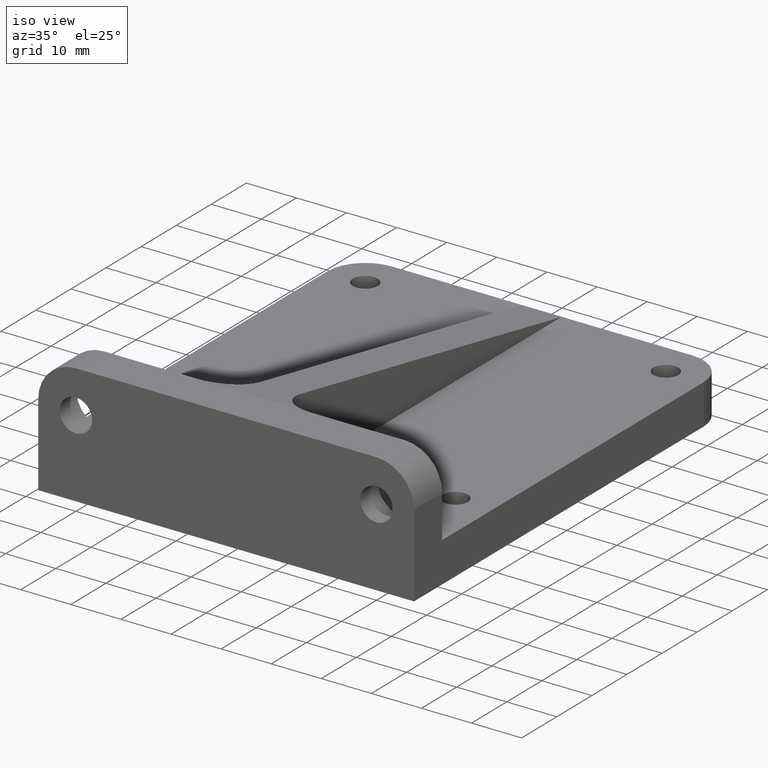
[diagram: clean part render]
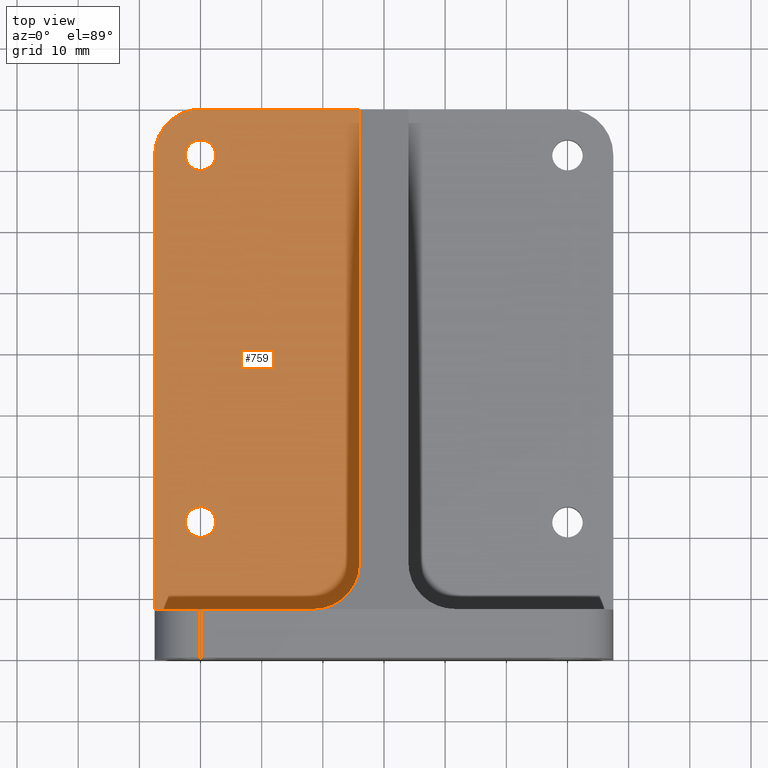
[diagram: tour spotlight — one face highlighted and labeled with its STEP entity id]
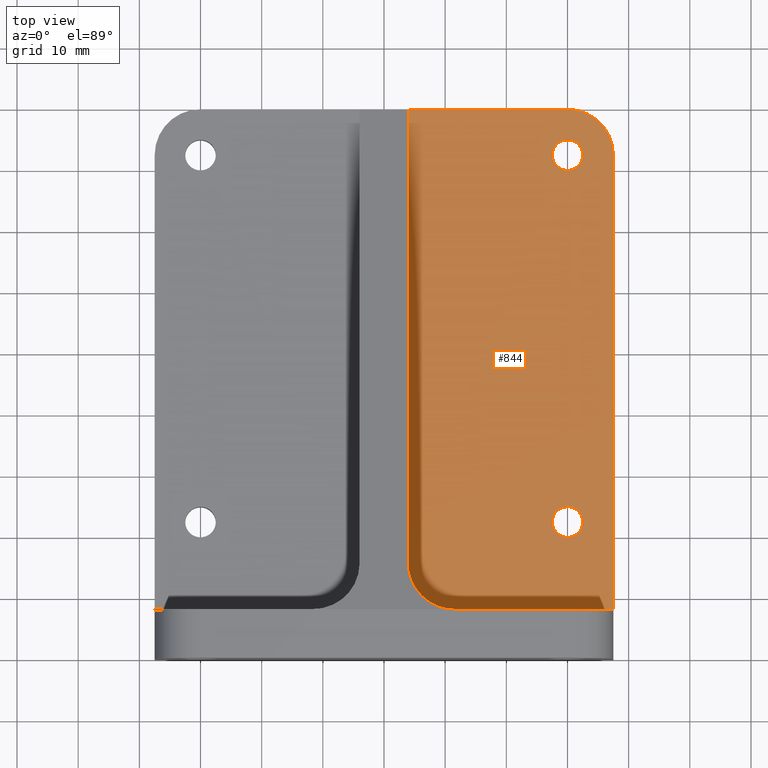
[diagram: tour spotlight — one face highlighted and labeled with its STEP entity id]
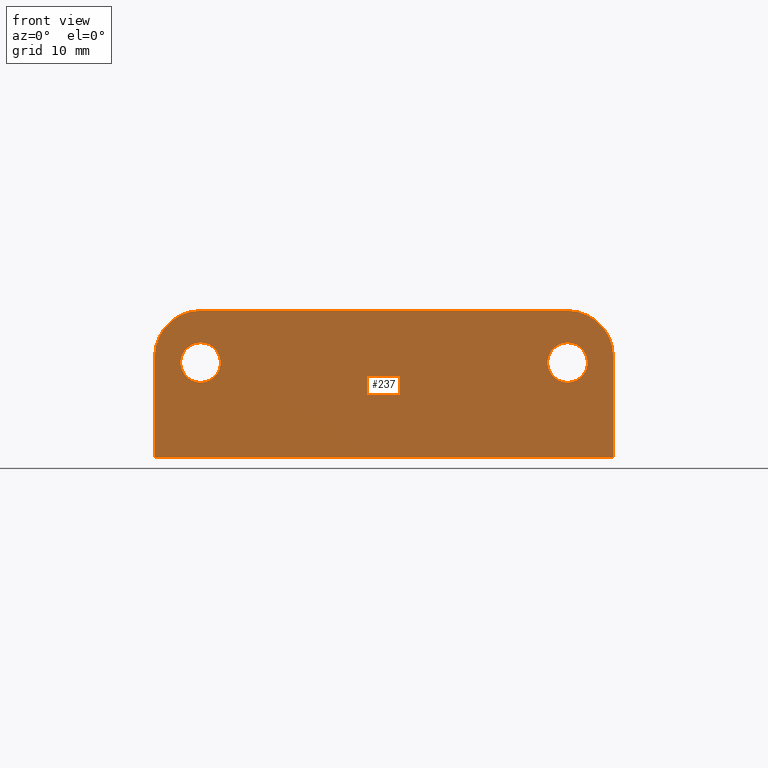
[diagram: tour spotlight — one face highlighted and labeled with its STEP entity id]
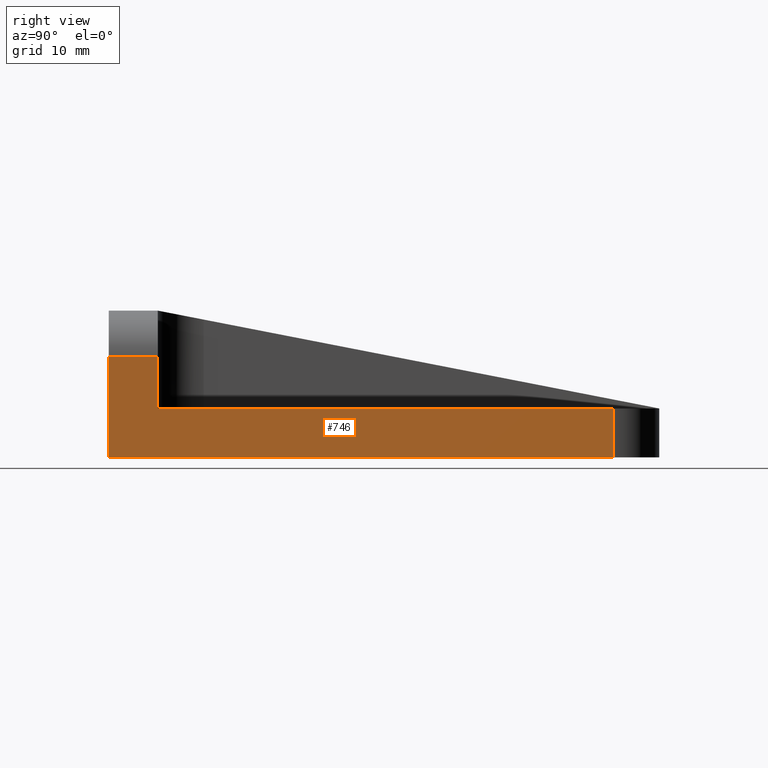
[diagram: tour spotlight — one face highlighted and labeled with its STEP entity id]
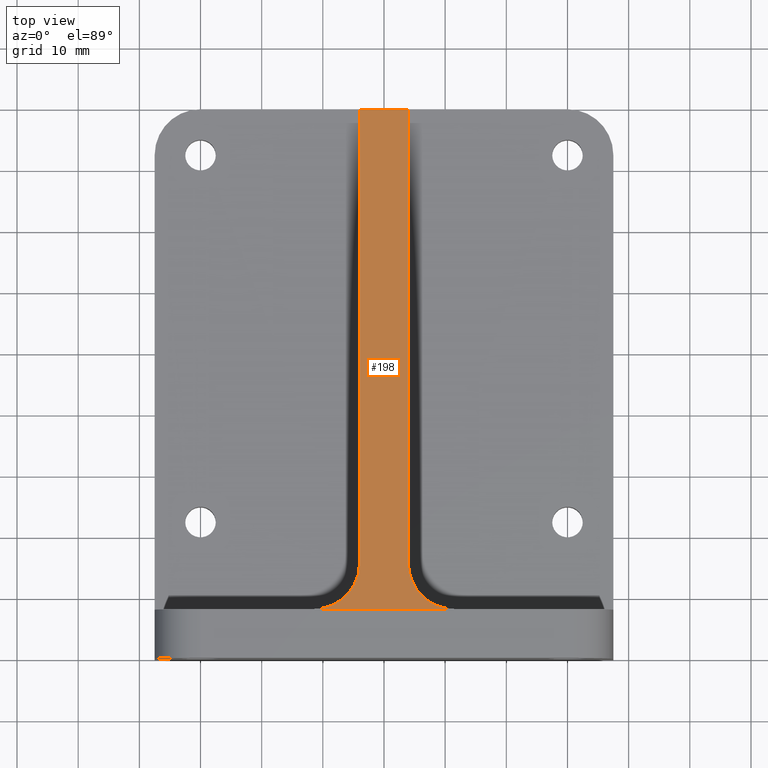
[diagram: tour spotlight — one face highlighted and labeled with its STEP entity id]
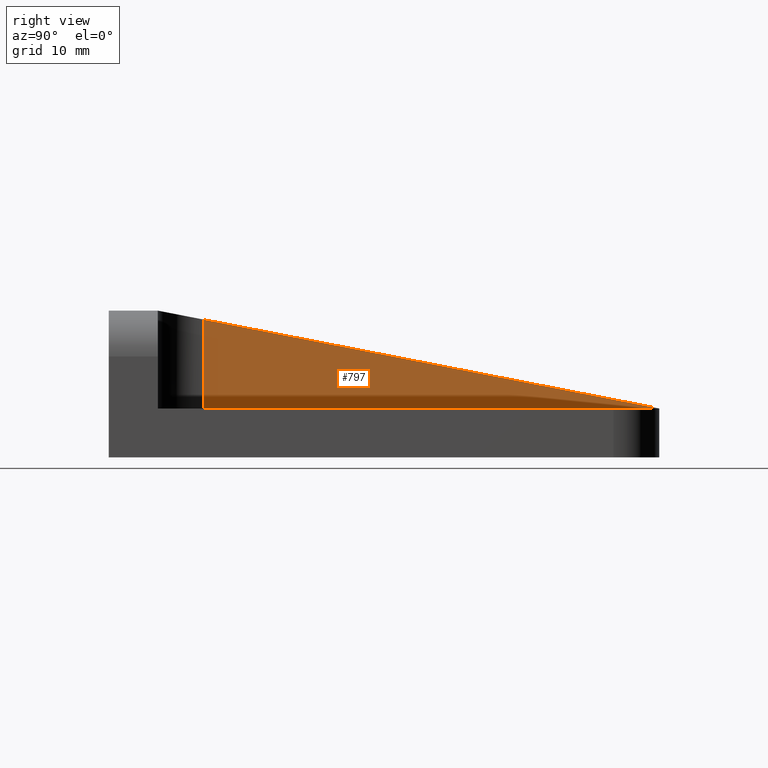
[diagram: tour spotlight — one face highlighted and labeled with its STEP entity id]
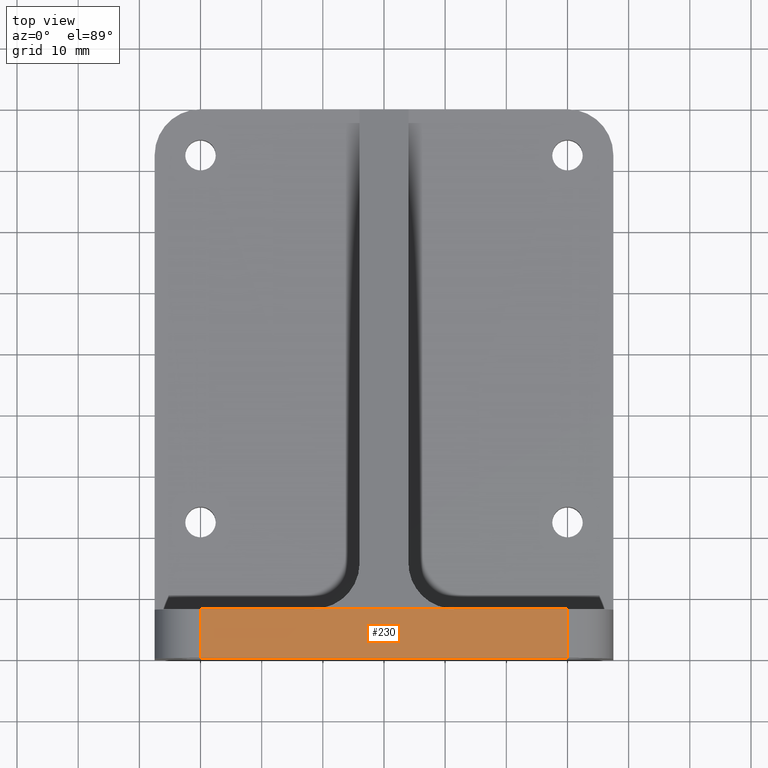
[diagram: tour spotlight — one face highlighted and labeled with its STEP entity id]
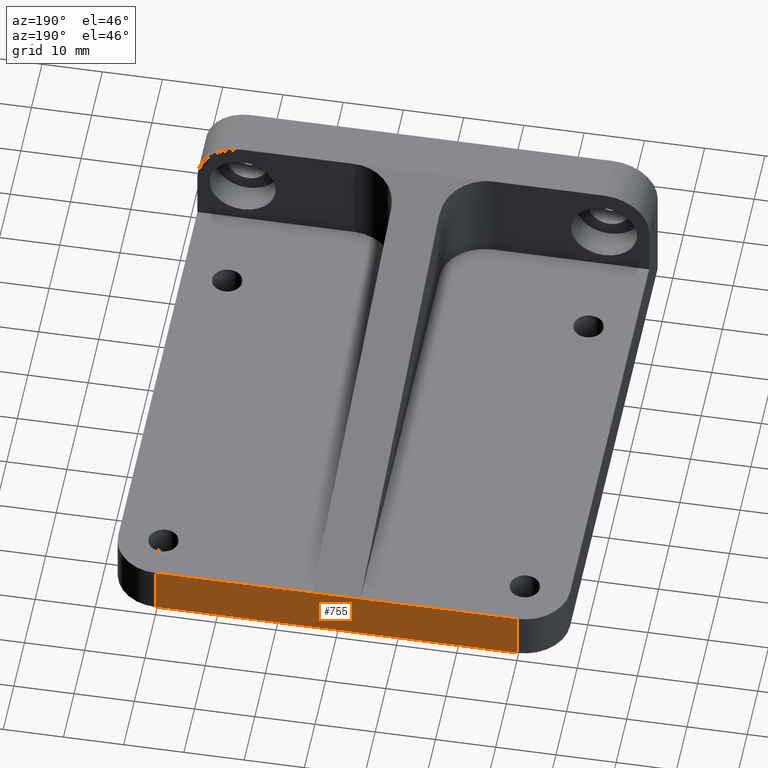
[diagram: tour spotlight — one face highlighted and labeled with its STEP entity id]
A machine part: a face-by-face anatomy tour. The part has 37 B-rep faces; the first image is the clean iso view, then the 8 largest visible faces are spotlighted one at a time (largest first), each with its STEP entity span.

Face 1 — top view, entity #759. In plain terms, the highlighted planar face has unit normal (0, 0, 1).
Definition (entity closure, byte-faithful):
#8 = AXIS2_PLACEMENT_3D ( 'NONE', #593, #983, #125 ) ;
#34 = DIRECTION ( 'NONE',  ( -0.0000000000000000000, -0.0000000000000000000, 1.000000000000000000 ) ) ;
#65 = CARTESIAN_POINT ( 'NONE',  ( -32.50000000000001421, 82.49999999999998579, 8.000000000000000000 ) ) ;
#95 = DIRECTION ( 'NONE',  ( -0.0000000000000000000, -0.0000000000000000000, 1.000000000000000000 ) ) ;
#104 = CARTESIAN_POINT ( 'NONE',  ( -3.999999999999991562, 15.49999999999999822, 8.000000000000007105 ) ) ;
#110 = DIRECTION ( 'NONE',  ( -0.0000000000000000000, -0.0000000000000000000, 1.000000000000000000 ) ) ;
#122 = CIRCLE ( 'NONE', #619, 2.499999999999998668 ) ;
#125 = DIRECTION ( 'NONE',  ( 1.000000000000000000, 0.0000000000000000000, 0.0000000000000000000 ) ) ;
#126 = DIRECTION ( 'NONE',  ( 1.000000000000000000, 0.0000000000000000000, 0.0000000000000000000 ) ) ;
#160 = VERTEX_POINT ( 'NONE', #65 ) ;
#193 = VERTEX_POINT ( 'NONE', #730 ) ;
#239 = CARTESIAN_POINT ( 'NONE',  ( -27.50000000000001421, 22.49999999999999645, 8.000000000000000000 ) ) ;
#253 = EDGE_CURVE ( 'NONE', #325, #542, #638, .T. ) ;
#259 = VERTEX_POINT ( 'NONE', #666 ) ;
#266 = DIRECTION ( 'NONE',  ( 0.0000000000000000000, 0.0000000000000000000, 1.000000000000000000 ) ) ;
#269 = ORIENTED_EDGE ( 'NONE', *, *, #1196, .T. ) ;
#273 = VERTEX_POINT ( 'NONE', #1234 ) ;
#291 = DIRECTION ( 'NONE',  ( -0.0000000000000000000, -0.0000000000000000000, 1.000000000000000000 ) ) ;
#300 = AXIS2_PLACEMENT_3D ( 'NONE', #539, #291, #453 ) ;
#305 = CARTESIAN_POINT ( 'NONE',  ( -37.50000000000000000, 90.00000000000000000, 8.000000000000007105 ) ) ;
#325 = VERTEX_POINT ( 'NONE', #239 ) ;
#350 = FACE_BOUND ( 'NONE', #670, .T. ) ;
#359 = CARTESIAN_POINT ( 'NONE',  ( -30.00000000000000711, 82.49999999999998579, 8.000000000000000000 ) ) ;
#361 = CIRCLE ( 'NONE', #965, 2.499999999999998668 ) ;
#370 = CARTESIAN_POINT ( 'NONE',  ( -30.00000000000001421, 82.49999999999998579, 8.000000000000000000 ) ) ;
#402 = AXIS2_PLACEMENT_3D ( 'NONE', #941, #645, #1033 ) ;
#404 = LINE ( 'NONE', #305, #906 ) ;
#405 = ORIENTED_EDGE ( 'NONE', *, *, #678, .F. ) ;
#453 = DIRECTION ( 'NONE',  ( 1.000000000000000000, 0.0000000000000000000, 0.0000000000000000000 ) ) ;
#473 = VECTOR ( 'NONE', #505, 1000.000000000000000 ) ;
#492 = CIRCLE ( 'NONE', #1143, 7.500000000000000000 ) ;
#505 = DIRECTION ( 'NONE',  ( 2.538619720941669448E-16, -1.000000000000000000, 0.0000000000000000000 ) ) ;
#511 = CIRCLE ( 'NONE', #1047, 2.499999999999998668 ) ;
#539 = CARTESIAN_POINT ( 'NONE',  ( -30.00000000000001421, 22.49999999999999645, 8.000000000000000000 ) ) ;
#542 = VERTEX_POINT ( 'NONE', #1129 ) ;
#543 = FACE_OUTER_BOUND ( 'NONE', #644, .T. ) ;
#553 = DIRECTION ( 'NONE',  ( 1.000000000000000000, 0.0000000000000000000, 0.0000000000000000000 ) ) ;
#572 = ORIENTED_EDGE ( 'NONE', *, *, #1069, .F. ) ;
#580 = DIRECTION ( 'NONE',  ( 1.000000000000000000, 0.0000000000000000000, 0.0000000000000000000 ) ) ;
#593 = CARTESIAN_POINT ( 'NONE',  ( -11.49999999999999112, 15.49999999999999645, 8.000000000000007105 ) ) ;
#595 = ORIENTED_EDGE ( 'NONE', *, *, #969, .T. ) ;
#613 = CARTESIAN_POINT ( 'NONE',  ( -27.50000000000001421, 82.49999999999998579, 8.000000000000000000 ) ) ;
#619 = AXIS2_PLACEMENT_3D ( 'NONE', #672, #95, #580 ) ;
#628 = EDGE_CURVE ( 'NONE', #542, #325, #122, .T. ) ;
#638 = CIRCLE ( 'NONE', #300, 2.499999999999998668 ) ;
#644 = EDGE_LOOP ( 'NONE', ( #1111, #269, #918, #405, #595, #959 ) ) ;
#645 = DIRECTION ( 'NONE',  ( 0.0000000000000000000, 0.0000000000000000000, 1.000000000000000000 ) ) ;
#666 = CARTESIAN_POINT ( 'NONE',  ( -11.49999999999998934, 7.999999999999996447, 8.000000000000007105 ) ) ;
#668 = EDGE_CURVE ( 'NONE', #193, #785, #404, .T. ) ;
#670 = EDGE_LOOP ( 'NONE', ( #922, #572 ) ) ;
#672 = CARTESIAN_POINT ( 'NONE',  ( -30.00000000000001421, 22.49999999999999645, 8.000000000000000000 ) ) ;
#678 = EDGE_CURVE ( 'NONE', #259, #1219, #1071, .T. ) ;
#682 = DIRECTION ( 'NONE',  ( -1.000000000000000000, 0.0000000000000000000, 0.0000000000000000000 ) ) ;
#714 = VERTEX_POINT ( 'NONE', #613 ) ;
#730 = CARTESIAN_POINT ( 'NONE',  ( -30.00000000000000711, 90.00000000000000000, 8.000000000000007105 ) ) ;
#734 = PLANE ( 'NONE',  #402 ) ;
#759 = ADVANCED_FACE ( 'NONE', ( #350, #1029, #543 ), #734, .T. ) ;
#785 = VERTEX_POINT ( 'NONE', #1037 ) ;
#798 = CARTESIAN_POINT ( 'NONE',  ( -37.50000000000000000, 7.999999999999996447, 8.000000000000007105 ) ) ;
#804 = ORIENTED_EDGE ( 'NONE', *, *, #628, .F. ) ;
#808 = CARTESIAN_POINT ( 'NONE',  ( -37.50000000000000000, 7.999999999999996447, 8.000000000000007105 ) ) ;
#820 = VERTEX_POINT ( 'NONE', #104 ) ;
#827 = EDGE_CURVE ( 'NONE', #714, #160, #511, .T. ) ;
#860 = EDGE_CURVE ( 'NONE', #785, #820, #1085, .T. ) ;
#864 = EDGE_CURVE ( 'NONE', #1219, #273, #1180, .T. ) ;
#890 = CARTESIAN_POINT ( 'NONE',  ( -3.999999999999989786, 7.999999999999996447, 8.000000000000007105 ) ) ;
#896 = DIRECTION ( 'NONE',  ( 1.000000000000000000, 0.0000000000000000000, 0.0000000000000000000 ) ) ;
#906 = VECTOR ( 'NONE', #1163, 1000.000000000000000 ) ;
#918 = ORIENTED_EDGE ( 'NONE', *, *, #864, .F. ) ;
#922 = ORIENTED_EDGE ( 'NONE', *, *, #827, .F. ) ;
#941 = CARTESIAN_POINT ( 'NONE',  ( 37.50000000000000000, 0.0000000000000000000, 8.000000000000000000 ) ) ;
#945 = VECTOR ( 'NONE', #682, 1000.000000000000000 ) ;
#959 = ORIENTED_EDGE ( 'NONE', *, *, #860, .F. ) ;
#965 = AXIS2_PLACEMENT_3D ( 'NONE', #1063, #34, #126 ) ;
#969 = EDGE_CURVE ( 'NONE', #259, #820, #1141, .T. ) ;
#983 = DIRECTION ( 'NONE',  ( 0.0000000000000000000, 0.0000000000000000000, 1.000000000000000000 ) ) ;
#991 = DIRECTION ( 'NONE',  ( 0.0000000000000000000, 1.000000000000000000, -0.0000000000000000000 ) ) ;
#1029 = FACE_BOUND ( 'NONE', #1091, .T. ) ;
#1033 = DIRECTION ( 'NONE',  ( 1.000000000000000000, 0.0000000000000000000, -0.0000000000000000000 ) ) ;
#1037 = CARTESIAN_POINT ( 'NONE',  ( -4.000000000000010658, 89.99999999999998579, 8.000000000000007105 ) ) ;
#1043 = ORIENTED_EDGE ( 'NONE', *, *, #253, .F. ) ;
#1047 = AXIS2_PLACEMENT_3D ( 'NONE', #370, #110, #553 ) ;
#1063 = CARTESIAN_POINT ( 'NONE',  ( -30.00000000000001421, 82.49999999999998579, 8.000000000000000000 ) ) ;
#1069 = EDGE_CURVE ( 'NONE', #160, #714, #361, .T. ) ;
#1071 = LINE ( 'NONE', #1187, #945 ) ;
#1085 = LINE ( 'NONE', #890, #473 ) ;
#1091 = EDGE_LOOP ( 'NONE', ( #1043, #804 ) ) ;
#1111 = ORIENTED_EDGE ( 'NONE', *, *, #668, .F. ) ;
#1129 = CARTESIAN_POINT ( 'NONE',  ( -32.50000000000001421, 22.49999999999999645, 8.000000000000000000 ) ) ;
#1141 = CIRCLE ( 'NONE', #8, 7.500000000000000000 ) ;
#1143 = AXIS2_PLACEMENT_3D ( 'NONE', #359, #266, #896 ) ;
#1163 = DIRECTION ( 'NONE',  ( 1.000000000000000000, -4.142623226213271784E-16, 0.0000000000000000000 ) ) ;
#1180 = LINE ( 'NONE', #808, #1231 ) ;
#1187 = CARTESIAN_POINT ( 'NONE',  ( -37.50000000000000000, 7.999999999999996447, 8.000000000000007105 ) ) ;
#1196 = EDGE_CURVE ( 'NONE', #193, #273, #492, .T. ) ;
#1219 = VERTEX_POINT ( 'NONE', #798 ) ;
#1231 = VECTOR ( 'NONE', #991, 1000.000000000000000 ) ;
#1234 = CARTESIAN_POINT ( 'NONE',  ( -37.50000000000000000, 82.49999999999998579, 8.000000000000007105 ) ) ;

Face 2 — top view, entity #844. In plain terms, the highlighted planar face has unit normal (0, 0, 1).
Definition (entity closure, byte-faithful):
#1 = DIRECTION ( 'NONE',  ( 0.0000000000000000000, 0.0000000000000000000, 1.000000000000000000 ) ) ;
#16 = CARTESIAN_POINT ( 'NONE',  ( 29.99999999999998579, 82.50000000000000000, 8.000000000000000000 ) ) ;
#17 = EDGE_CURVE ( 'NONE', #973, #92, #1109, .T. ) ;
#18 = CARTESIAN_POINT ( 'NONE',  ( 37.50000000000000000, 82.49999999999998579, 8.000000000000007105 ) ) ;
#20 = ORIENTED_EDGE ( 'NONE', *, *, #810, .T. ) ;
#24 = ORIENTED_EDGE ( 'NONE', *, *, #61, .T. ) ;
#35 = ORIENTED_EDGE ( 'NONE', *, *, #17, .T. ) ;
#40 = PLANE ( 'NONE',  #987 ) ;
#49 = AXIS2_PLACEMENT_3D ( 'NONE', #1084, #226, #691 ) ;
#61 = EDGE_CURVE ( 'NONE', #139, #1023, #570, .T. ) ;
#92 = VERTEX_POINT ( 'NONE', #136 ) ;
#105 = AXIS2_PLACEMENT_3D ( 'NONE', #618, #1006, #341 ) ;
#117 = CARTESIAN_POINT ( 'NONE',  ( 37.50000000000000000, 7.999999999999996447, 8.000000000000007105 ) ) ;
#123 = LINE ( 'NONE', #117, #831 ) ;
#131 = CARTESIAN_POINT ( 'NONE',  ( 27.49999999999998224, 82.50000000000000000, 8.000000000000000000 ) ) ;
#136 = CARTESIAN_POINT ( 'NONE',  ( 4.000000000000008882, 89.99999999999998579, 8.000000000000007105 ) ) ;
#139 = VERTEX_POINT ( 'NONE', #533 ) ;
#144 = VECTOR ( 'NONE', #937, 1000.000000000000000 ) ;
#149 = EDGE_LOOP ( 'NONE', ( #240, #665 ) ) ;
#175 = CIRCLE ( 'NONE', #1164, 7.500000000000000000 ) ;
#187 = DIRECTION ( 'NONE',  ( -0.0000000000000000000, -0.0000000000000000000, 1.000000000000000000 ) ) ;
#189 = CARTESIAN_POINT ( 'NONE',  ( 37.50000000000000000, 90.00000000000000000, 8.000000000000000000 ) ) ;
#207 = CARTESIAN_POINT ( 'NONE',  ( 27.50000000000002487, 22.50000000000000355, 8.000000000000000000 ) ) ;
#226 = DIRECTION ( 'NONE',  ( 0.0000000000000000000, 0.0000000000000000000, 1.000000000000000000 ) ) ;
#240 = ORIENTED_EDGE ( 'NONE', *, *, #1036, .F. ) ;
#284 = EDGE_CURVE ( 'NONE', #916, #1023, #460, .T. ) ;
#290 = CARTESIAN_POINT ( 'NONE',  ( 30.00000000000000000, 82.49999999999998579, 8.000000000000000000 ) ) ;
#295 = ORIENTED_EDGE ( 'NONE', *, *, #704, .F. ) ;
#303 = FACE_OUTER_BOUND ( 'NONE', #712, .T. ) ;
#314 = DIRECTION ( 'NONE',  ( -0.0000000000000000000, -1.000000000000000000, 0.0000000000000000000 ) ) ;
#341 = DIRECTION ( 'NONE',  ( 1.000000000000000000, 0.0000000000000000000, 0.0000000000000000000 ) ) ;
#354 = DIRECTION ( 'NONE',  ( 1.000000000000000000, 0.0000000000000000000, 0.0000000000000000000 ) ) ;
#372 = DIRECTION ( 'NONE',  ( 0.0000000000000000000, 1.000000000000000000, -0.0000000000000000000 ) ) ;
#373 = EDGE_CURVE ( 'NONE', #872, #1152, #984, .T. ) ;
#396 = DIRECTION ( 'NONE',  ( 1.000000000000000000, 0.0000000000000000000, 0.0000000000000000000 ) ) ;
#403 = CIRCLE ( 'NONE', #989, 2.500000000000002220 ) ;
#421 = CARTESIAN_POINT ( 'NONE',  ( 37.50000000000000000, 0.0000000000000000000, 8.000000000000000000 ) ) ;
#431 = EDGE_LOOP ( 'NONE', ( #911, #472 ) ) ;
#459 = AXIS2_PLACEMENT_3D ( 'NONE', #483, #882, #396 ) ;
#460 = LINE ( 'NONE', #857, #849 ) ;
#469 = DIRECTION ( 'NONE',  ( -0.0000000000000000000, -0.0000000000000000000, 1.000000000000000000 ) ) ;
#472 = ORIENTED_EDGE ( 'NONE', *, *, #892, .F. ) ;
#483 = CARTESIAN_POINT ( 'NONE',  ( 30.00000000000002842, 22.50000000000000355, 8.000000000000000000 ) ) ;
#490 = DIRECTION ( 'NONE',  ( 1.000000000000000000, 0.0000000000000000000, -0.0000000000000000000 ) ) ;
#507 = CARTESIAN_POINT ( 'NONE',  ( 37.50000000000000000, 7.999999999999996447, 8.000000000000000000 ) ) ;
#510 = VECTOR ( 'NONE', #372, 1000.000000000000000 ) ;
#530 = ORIENTED_EDGE ( 'NONE', *, *, #573, .F. ) ;
#533 = CARTESIAN_POINT ( 'NONE',  ( 4.000000000000008882, 15.49999999999999822, 8.000000000000007105 ) ) ;
#570 = CIRCLE ( 'NONE', #49, 7.500000000000000000 ) ;
#573 = EDGE_CURVE ( 'NONE', #139, #92, #757, .T. ) ;
#578 = FACE_BOUND ( 'NONE', #149, .T. ) ;
#582 = VERTEX_POINT ( 'NONE', #18 ) ;
#618 = CARTESIAN_POINT ( 'NONE',  ( 30.00000000000002842, 22.50000000000000355, 8.000000000000000000 ) ) ;
#637 = CARTESIAN_POINT ( 'NONE',  ( 29.99999999999998579, 82.50000000000000000, 8.000000000000000000 ) ) ;
#665 = ORIENTED_EDGE ( 'NONE', *, *, #373, .F. ) ;
#686 = CARTESIAN_POINT ( 'NONE',  ( 32.50000000000002842, 22.50000000000000355, 8.000000000000000000 ) ) ;
#691 = DIRECTION ( 'NONE',  ( 1.000000000000000000, 0.0000000000000000000, 0.0000000000000000000 ) ) ;
#704 = EDGE_CURVE ( 'NONE', #582, #916, #123, .T. ) ;
#712 = EDGE_LOOP ( 'NONE', ( #295, #20, #35, #530, #24, #821 ) ) ;
#719 = AXIS2_PLACEMENT_3D ( 'NONE', #637, #187, #354 ) ;
#757 = LINE ( 'NONE', #1242, #510 ) ;
#778 = CARTESIAN_POINT ( 'NONE',  ( 32.49999999999998579, 82.50000000000000000, 8.000000000000000000 ) ) ;
#810 = EDGE_CURVE ( 'NONE', #582, #973, #175, .T. ) ;
#815 = DIRECTION ( 'NONE',  ( 0.0000000000000000000, 0.0000000000000000000, 1.000000000000000000 ) ) ;
#821 = ORIENTED_EDGE ( 'NONE', *, *, #284, .F. ) ;
#831 = VECTOR ( 'NONE', #314, 1000.000000000000000 ) ;
#844 = ADVANCED_FACE ( 'NONE', ( #1067, #578, #303 ), #40, .T. ) ;
#849 = VECTOR ( 'NONE', #1240, 1000.000000000000000 ) ;
#855 = VERTEX_POINT ( 'NONE', #686 ) ;
#857 = CARTESIAN_POINT ( 'NONE',  ( 37.50000000000000000, 7.999999999999996447, 8.000000000000007105 ) ) ;
#867 = DIRECTION ( 'NONE',  ( 1.000000000000000000, 0.0000000000000000000, 0.0000000000000000000 ) ) ;
#872 = VERTEX_POINT ( 'NONE', #131 ) ;
#880 = CARTESIAN_POINT ( 'NONE',  ( 11.50000000000001066, 7.999999999999998224, 8.000000000000007105 ) ) ;
#882 = DIRECTION ( 'NONE',  ( -0.0000000000000000000, -0.0000000000000000000, 1.000000000000000000 ) ) ;
#892 = EDGE_CURVE ( 'NONE', #1026, #855, #964, .T. ) ;
#911 = ORIENTED_EDGE ( 'NONE', *, *, #1149, .F. ) ;
#916 = VERTEX_POINT ( 'NONE', #507 ) ;
#937 = DIRECTION ( 'NONE',  ( -1.000000000000000000, -0.0000000000000000000, -0.0000000000000000000 ) ) ;
#964 = CIRCLE ( 'NONE', #105, 2.500000000000002220 ) ;
#973 = VERTEX_POINT ( 'NONE', #1128 ) ;
#984 = CIRCLE ( 'NONE', #719, 2.500000000000002220 ) ;
#987 = AXIS2_PLACEMENT_3D ( 'NONE', #421, #815, #490 ) ;
#989 = AXIS2_PLACEMENT_3D ( 'NONE', #16, #469, #867 ) ;
#1006 = DIRECTION ( 'NONE',  ( -0.0000000000000000000, -0.0000000000000000000, 1.000000000000000000 ) ) ;
#1008 = CIRCLE ( 'NONE', #459, 2.500000000000002220 ) ;
#1023 = VERTEX_POINT ( 'NONE', #880 ) ;
#1026 = VERTEX_POINT ( 'NONE', #207 ) ;
#1036 = EDGE_CURVE ( 'NONE', #1152, #872, #403, .T. ) ;
#1055 = DIRECTION ( 'NONE',  ( 1.000000000000000000, 0.0000000000000000000, 0.0000000000000000000 ) ) ;
#1067 = FACE_BOUND ( 'NONE', #431, .T. ) ;
#1084 = CARTESIAN_POINT ( 'NONE',  ( 11.50000000000001066, 15.49999999999999822, 8.000000000000007105 ) ) ;
#1109 = LINE ( 'NONE', #189, #144 ) ;
#1128 = CARTESIAN_POINT ( 'NONE',  ( 30.00000000000000000, 90.00000000000000000, 8.000000000000000000 ) ) ;
#1149 = EDGE_CURVE ( 'NONE', #855, #1026, #1008, .T. ) ;
#1152 = VERTEX_POINT ( 'NONE', #778 ) ;
#1164 = AXIS2_PLACEMENT_3D ( 'NONE', #290, #1, #1055 ) ;
#1240 = DIRECTION ( 'NONE',  ( -1.000000000000000000, 5.178279032766589730E-17, 0.0000000000000000000 ) ) ;
#1242 = CARTESIAN_POINT ( 'NONE',  ( 4.000000000000008882, 7.999999999999998224, 8.000000000000007105 ) ) ;

Face 3 — front view, entity #237. In plain terms, the highlighted planar face has unit normal (-0, 1, 0).
Definition (entity closure, byte-faithful):
#6 = EDGE_CURVE ( 'NONE', #391, #1239, #981, .T. ) ;
#30 = CIRCLE ( 'NONE', #124, 3.249999999999999556 ) ;
#33 = VERTEX_POINT ( 'NONE', #316 ) ;
#43 = VERTEX_POINT ( 'NONE', #1160 ) ;
#44 = DIRECTION ( 'NONE',  ( 0.0000000000000000000, -1.224646799147352961E-16, 1.000000000000000000 ) ) ;
#52 = AXIS2_PLACEMENT_3D ( 'NONE', #1183, #696, #1082 ) ;
#99 = DIRECTION ( 'NONE',  ( 0.0000000000000000000, -1.224646799147352961E-16, 1.000000000000000000 ) ) ;
#109 = EDGE_LOOP ( 'NONE', ( #792, #495 ) ) ;
#124 = AXIS2_PLACEMENT_3D ( 'NONE', #588, #306, #978 ) ;
#133 = ORIENTED_EDGE ( 'NONE', *, *, #1155, .F. ) ;
#143 = EDGE_CURVE ( 'NONE', #1032, #1075, #931, .T. ) ;
#159 = ORIENTED_EDGE ( 'NONE', *, *, #463, .F. ) ;
#185 = PLANE ( 'NONE',  #961 ) ;
#195 = AXIS2_PLACEMENT_3D ( 'NONE', #1127, #436, #270 ) ;
#212 = CARTESIAN_POINT ( 'NONE',  ( 30.00000000000000000, -2.939152317953647894E-15, 24.00000000000000000 ) ) ;
#232 = DIRECTION ( 'NONE',  ( 0.0000000000000000000, -1.000000000000000000, -1.224646799147353207E-16 ) ) ;
#237 = ADVANCED_FACE ( 'NONE', ( #1222, #721, #1097 ), #185, .F. ) ;
#249 = CIRCLE ( 'NONE', #946, 7.500000000000000000 ) ;
#267 = AXIS2_PLACEMENT_3D ( 'NONE', #767, #232, #44 ) ;
#270 = DIRECTION ( 'NONE',  ( 0.0000000000000000000, -1.224646799147352961E-16, 1.000000000000000000 ) ) ;
#279 = DIRECTION ( 'NONE',  ( 0.0000000000000000000, -1.000000000000000000, -1.224646799147353207E-16 ) ) ;
#306 = DIRECTION ( 'NONE',  ( -0.0000000000000000000, 1.000000000000000000, 1.224646799147353207E-16 ) ) ;
#310 = EDGE_LOOP ( 'NONE', ( #159, #629, #826, #1184, #883, #133 ) ) ;
#316 = CARTESIAN_POINT ( 'NONE',  ( 37.50000000000000000, -2.020667218593133100E-15, 16.50000000000000000 ) ) ;
#336 = CARTESIAN_POINT ( 'NONE',  ( -37.50000000000000000, 0.0000000000000000000, 0.0000000000000000000 ) ) ;
#340 = ORIENTED_EDGE ( 'NONE', *, *, #6, .T. ) ;
#352 = CARTESIAN_POINT ( 'NONE',  ( 37.50000000000000000, 0.0000000000000000000, 0.0000000000000000000 ) ) ;
#364 = DIRECTION ( 'NONE',  ( 0.0000000000000000000, -1.224646799147352961E-16, 1.000000000000000000 ) ) ;
#368 = VERTEX_POINT ( 'NONE', #449 ) ;
#391 = VERTEX_POINT ( 'NONE', #1237 ) ;
#392 = VERTEX_POINT ( 'NONE', #1211 ) ;
#436 = DIRECTION ( 'NONE',  ( -0.0000000000000000000, 1.000000000000000000, 1.224646799147353207E-16 ) ) ;
#448 = CARTESIAN_POINT ( 'NONE',  ( 30.00000000000000355, -1.734723475976807094E-15, 15.49999999999999289 ) ) ;
#449 = CARTESIAN_POINT ( 'NONE',  ( -29.99999999999999645, -1.336713266253917468E-15, 12.25000000000000000 ) ) ;
#463 = EDGE_CURVE ( 'NONE', #33, #43, #958, .T. ) ;
#495 = ORIENTED_EDGE ( 'NONE', *, *, #1108, .T. ) ;
#503 = EDGE_LOOP ( 'NONE', ( #340, #1072 ) ) ;
#513 = CIRCLE ( 'NONE', #52, 3.249999999999999556 ) ;
#515 = VERTEX_POINT ( 'NONE', #881 ) ;
#546 = DIRECTION ( 'NONE',  ( -0.0000000000000000000, 1.000000000000000000, 1.224646799147353207E-16 ) ) ;
#556 = CARTESIAN_POINT ( 'NONE',  ( 37.50000000000000000, 0.0000000000000000000, 0.0000000000000000000 ) ) ;
#557 = CARTESIAN_POINT ( 'NONE',  ( 30.00000000000000355, -1.336713266253917468E-15, 12.24999999999999289 ) ) ;
#588 = CARTESIAN_POINT ( 'NONE',  ( 30.00000000000000355, -1.734723475976807094E-15, 15.49999999999999289 ) ) ;
#599 = CIRCLE ( 'NONE', #267, 7.500000000000000000 ) ;
#603 = CARTESIAN_POINT ( 'NONE',  ( -37.50000000000000000, 0.0000000000000000000, 0.0000000000000000000 ) ) ;
#624 = VECTOR ( 'NONE', #1012, 1000.000000000000000 ) ;
#629 = ORIENTED_EDGE ( 'NONE', *, *, #1031, .T. ) ;
#655 = CARTESIAN_POINT ( 'NONE',  ( -37.50000000000000000, -2.020667218593133100E-15, 16.50000000000000000 ) ) ;
#673 = VECTOR ( 'NONE', #728, 1000.000000000000000 ) ;
#696 = DIRECTION ( 'NONE',  ( -0.0000000000000000000, 1.000000000000000000, 1.224646799147353207E-16 ) ) ;
#721 = FACE_BOUND ( 'NONE', #503, .T. ) ;
#728 = DIRECTION ( 'NONE',  ( -0.0000000000000000000, 1.224646799147353207E-16, -1.000000000000000000 ) ) ;
#735 = DIRECTION ( 'NONE',  ( -0.0000000000000000000, 1.000000000000000000, 1.224646799147353207E-16 ) ) ;
#767 = CARTESIAN_POINT ( 'NONE',  ( -30.00000000000000711, -2.020667218593133100E-15, 16.50000000000000000 ) ) ;
#773 = LINE ( 'NONE', #1191, #1165 ) ;
#777 = EDGE_CURVE ( 'NONE', #392, #368, #851, .T. ) ;
#792 = ORIENTED_EDGE ( 'NONE', *, *, #777, .T. ) ;
#802 = DIRECTION ( 'NONE',  ( -1.000000000000000000, -0.0000000000000000000, -0.0000000000000000000 ) ) ;
#817 = VERTEX_POINT ( 'NONE', #212 ) ;
#825 = LINE ( 'NONE', #1198, #624 ) ;
#826 = ORIENTED_EDGE ( 'NONE', *, *, #1113, .T. ) ;
#851 = CIRCLE ( 'NONE', #195, 3.249999999999999556 ) ;
#881 = CARTESIAN_POINT ( 'NONE',  ( -30.00000000000000711, -2.939152317953647894E-15, 24.00000000000000000 ) ) ;
#883 = ORIENTED_EDGE ( 'NONE', *, *, #143, .T. ) ;
#909 = DIRECTION ( 'NONE',  ( 0.0000000000000000000, -1.224646799147353207E-16, 1.000000000000000000 ) ) ;
#923 = AXIS2_PLACEMENT_3D ( 'NONE', #448, #546, #364 ) ;
#931 = LINE ( 'NONE', #336, #673 ) ;
#946 = AXIS2_PLACEMENT_3D ( 'NONE', #1136, #279, #99 ) ;
#952 = DIRECTION ( 'NONE',  ( -0.0000000000000000000, 1.224646799147353207E-16, -1.000000000000000000 ) ) ;
#958 = LINE ( 'NONE', #556, #1120 ) ;
#961 = AXIS2_PLACEMENT_3D ( 'NONE', #352, #735, #909 ) ;
#978 = DIRECTION ( 'NONE',  ( 0.0000000000000000000, -1.224646799147352961E-16, 1.000000000000000000 ) ) ;
#981 = CIRCLE ( 'NONE', #923, 3.249999999999999556 ) ;
#1012 = DIRECTION ( 'NONE',  ( -1.000000000000000000, -0.0000000000000000000, -0.0000000000000000000 ) ) ;
#1031 = EDGE_CURVE ( 'NONE', #33, #817, #249, .T. ) ;
#1032 = VERTEX_POINT ( 'NONE', #655 ) ;
#1064 = EDGE_CURVE ( 'NONE', #515, #1032, #599, .T. ) ;
#1072 = ORIENTED_EDGE ( 'NONE', *, *, #1102, .T. ) ;
#1075 = VERTEX_POINT ( 'NONE', #603 ) ;
#1082 = DIRECTION ( 'NONE',  ( 0.0000000000000000000, -1.224646799147352961E-16, 1.000000000000000000 ) ) ;
#1097 = FACE_OUTER_BOUND ( 'NONE', #310, .T. ) ;
#1102 = EDGE_CURVE ( 'NONE', #1239, #391, #30, .T. ) ;
#1108 = EDGE_CURVE ( 'NONE', #368, #392, #513, .T. ) ;
#1113 = EDGE_CURVE ( 'NONE', #817, #515, #773, .T. ) ;
#1120 = VECTOR ( 'NONE', #952, 1000.000000000000000 ) ;
#1127 = CARTESIAN_POINT ( 'NONE',  ( -29.99999999999999645, -1.734723475976807094E-15, 15.50000000000000000 ) ) ;
#1136 = CARTESIAN_POINT ( 'NONE',  ( 30.00000000000000000, -2.020667218593133100E-15, 16.50000000000000000 ) ) ;
#1155 = EDGE_CURVE ( 'NONE', #43, #1075, #825, .T. ) ;
#1160 = CARTESIAN_POINT ( 'NONE',  ( 37.50000000000000000, 0.0000000000000000000, 0.0000000000000000000 ) ) ;
#1165 = VECTOR ( 'NONE', #802, 1000.000000000000000 ) ;
#1183 = CARTESIAN_POINT ( 'NONE',  ( -29.99999999999999645, -1.734723475976807094E-15, 15.50000000000000000 ) ) ;
#1184 = ORIENTED_EDGE ( 'NONE', *, *, #1064, .T. ) ;
#1191 = CARTESIAN_POINT ( 'NONE',  ( 37.50000000000000000, -2.939152317953647894E-15, 24.00000000000000000 ) ) ;
#1198 = CARTESIAN_POINT ( 'NONE',  ( 37.50000000000000000, 0.0000000000000000000, 0.0000000000000000000 ) ) ;
#1211 = CARTESIAN_POINT ( 'NONE',  ( -29.99999999999999645, -2.132733685699696720E-15, 18.75000000000000000 ) ) ;
#1222 = FACE_BOUND ( 'NONE', #109, .T. ) ;
#1237 = CARTESIAN_POINT ( 'NONE',  ( 30.00000000000000355, -2.132733685699696720E-15, 18.74999999999999289 ) ) ;
#1239 = VERTEX_POINT ( 'NONE', #557 ) ;

Face 4 — right view, entity #746. In plain terms, the highlighted planar face has unit normal (-1, 0, 0).
Definition (entity closure, byte-faithful):
#18 = CARTESIAN_POINT ( 'NONE',  ( 37.50000000000000000, 82.49999999999998579, 8.000000000000007105 ) ) ;
#33 = VERTEX_POINT ( 'NONE', #316 ) ;
#43 = VERTEX_POINT ( 'NONE', #1160 ) ;
#85 = VERTEX_POINT ( 'NONE', #498 ) ;
#107 = LINE ( 'NONE', #657, #194 ) ;
#114 = DIRECTION ( 'NONE',  ( 0.0000000000000000000, -1.000000000000000000, 0.0000000000000000000 ) ) ;
#117 = CARTESIAN_POINT ( 'NONE',  ( 37.50000000000000000, 7.999999999999996447, 8.000000000000007105 ) ) ;
#123 = LINE ( 'NONE', #117, #831 ) ;
#141 = LINE ( 'NONE', #1156, #150 ) ;
#150 = VECTOR ( 'NONE', #114, 1000.000000000000000 ) ;
#177 = CARTESIAN_POINT ( 'NONE',  ( 37.50000000000000000, 82.49999999999998579, 0.0000000000000000000 ) ) ;
#180 = CARTESIAN_POINT ( 'NONE',  ( 37.50000000000000000, 82.49999999999995737, 0.0000000000000000000 ) ) ;
#182 = EDGE_CURVE ( 'NONE', #1202, #582, #622, .T. ) ;
#194 = VECTOR ( 'NONE', #1150, 1000.000000000000000 ) ;
#196 = CARTESIAN_POINT ( 'NONE',  ( 37.50000000000000000, 0.0000000000000000000, 0.0000000000000000000 ) ) ;
#213 = AXIS2_PLACEMENT_3D ( 'NONE', #832, #633, #347 ) ;
#223 = ORIENTED_EDGE ( 'NONE', *, *, #257, .T. ) ;
#257 = EDGE_CURVE ( 'NONE', #43, #1202, #560, .T. ) ;
#314 = DIRECTION ( 'NONE',  ( -0.0000000000000000000, -1.000000000000000000, 0.0000000000000000000 ) ) ;
#316 = CARTESIAN_POINT ( 'NONE',  ( 37.50000000000000000, -2.020667218593133100E-15, 16.50000000000000000 ) ) ;
#347 = DIRECTION ( 'NONE',  ( 0.0000000000000000000, 0.0000000000000000000, 1.000000000000000000 ) ) ;
#426 = ORIENTED_EDGE ( 'NONE', *, *, #182, .T. ) ;
#443 = PLANE ( 'NONE',  #213 ) ;
#463 = EDGE_CURVE ( 'NONE', #33, #43, #958, .T. ) ;
#486 = VECTOR ( 'NONE', #1038, 1000.000000000000000 ) ;
#498 = CARTESIAN_POINT ( 'NONE',  ( 37.50000000000000000, 7.999999999999996447, 16.50000000000000000 ) ) ;
#507 = CARTESIAN_POINT ( 'NONE',  ( 37.50000000000000000, 7.999999999999996447, 8.000000000000000000 ) ) ;
#512 = ORIENTED_EDGE ( 'NONE', *, *, #1132, .T. ) ;
#544 = EDGE_CURVE ( 'NONE', #916, #85, #107, .T. ) ;
#556 = CARTESIAN_POINT ( 'NONE',  ( 37.50000000000000000, 0.0000000000000000000, 0.0000000000000000000 ) ) ;
#560 = LINE ( 'NONE', #196, #486 ) ;
#582 = VERTEX_POINT ( 'NONE', #18 ) ;
#622 = LINE ( 'NONE', #177, #884 ) ;
#633 = DIRECTION ( 'NONE',  ( -1.000000000000000000, 0.0000000000000000000, 0.0000000000000000000 ) ) ;
#657 = CARTESIAN_POINT ( 'NONE',  ( 37.50000000000000000, 7.999999999999996447, -88.57906073107798761 ) ) ;
#704 = EDGE_CURVE ( 'NONE', #582, #916, #123, .T. ) ;
#742 = FACE_OUTER_BOUND ( 'NONE', #1238, .T. ) ;
#746 = ADVANCED_FACE ( 'NONE', ( #742 ), #443, .F. ) ;
#749 = ORIENTED_EDGE ( 'NONE', *, *, #463, .T. ) ;
#831 = VECTOR ( 'NONE', #314, 1000.000000000000000 ) ;
#832 = CARTESIAN_POINT ( 'NONE',  ( 37.50000000000000000, 0.0000000000000000000, 0.0000000000000000000 ) ) ;
#884 = VECTOR ( 'NONE', #1217, 1000.000000000000000 ) ;
#916 = VERTEX_POINT ( 'NONE', #507 ) ;
#952 = DIRECTION ( 'NONE',  ( -0.0000000000000000000, 1.224646799147353207E-16, -1.000000000000000000 ) ) ;
#958 = LINE ( 'NONE', #556, #1120 ) ;
#1010 = ORIENTED_EDGE ( 'NONE', *, *, #704, .T. ) ;
#1038 = DIRECTION ( 'NONE',  ( 0.0000000000000000000, 1.000000000000000000, 0.0000000000000000000 ) ) ;
#1120 = VECTOR ( 'NONE', #952, 1000.000000000000000 ) ;
#1132 = EDGE_CURVE ( 'NONE', #85, #33, #141, .T. ) ;
#1133 = ORIENTED_EDGE ( 'NONE', *, *, #544, .T. ) ;
#1150 = DIRECTION ( 'NONE',  ( -0.0000000000000000000, -0.0000000000000000000, 1.000000000000000000 ) ) ;
#1156 = CARTESIAN_POINT ( 'NONE',  ( 37.50000000000000000, 0.0000000000000000000, 16.50000000000000000 ) ) ;
#1160 = CARTESIAN_POINT ( 'NONE',  ( 37.50000000000000000, 0.0000000000000000000, 0.0000000000000000000 ) ) ;
#1202 = VERTEX_POINT ( 'NONE', #180 ) ;
#1217 = DIRECTION ( 'NONE',  ( 0.0000000000000000000, 0.0000000000000000000, 1.000000000000000000 ) ) ;
#1238 = EDGE_LOOP ( 'NONE', ( #1133, #512, #749, #223, #426, #1010 ) ) ;

Face 5 — top view, entity #198. In plain terms, the highlighted planar face has unit normal (0, -0.1915, -0.9815).
Definition (entity closure, byte-faithful):
#3 = ORIENTED_EDGE ( 'NONE', *, *, #268, .T. ) ;
#60 = PLANE ( 'NONE',  #121 ) ;
#71 = VERTEX_POINT ( 'NONE', #782 ) ;
#76 = CARTESIAN_POINT ( 'NONE',  ( 7.106601717798236351, 7.999999999999996447, 24.00000000000000711 ) ) ;
#89 = VECTOR ( 'NONE', #910, 1000.000000000000000 ) ;
#92 = VERTEX_POINT ( 'NONE', #136 ) ;
#93 = DIRECTION ( 'NONE',  ( 2.491631372835153837E-16, -0.9814905920256988825, 0.1915103594196485570 ) ) ;
#101 = EDGE_CURVE ( 'NONE', #1193, #92, #521, .T. ) ;
#102 = EDGE_LOOP ( 'NONE', ( #412, #142, #3, #1135, #604, #1068 ) ) ;
#103 = VECTOR ( 'NONE', #93, 1000.000000000000227 ) ;
#121 = AXIS2_PLACEMENT_3D ( 'NONE', #1009, #845, #1030 ) ;
#136 = CARTESIAN_POINT ( 'NONE',  ( 4.000000000000008882, 89.99999999999998579, 8.000000000000007105 ) ) ;
#142 = ORIENTED_EDGE ( 'NONE', *, *, #276, .T. ) ;
#148 = VECTOR ( 'NONE', #1232, 1000.000000000000000 ) ;
#184 = LINE ( 'NONE', #936, #148 ) ;
#198 = ADVANCED_FACE ( 'NONE', ( #634 ), #60, .F. ) ;
#247 = CARTESIAN_POINT ( 'NONE',  ( 37.50000000000000000, 90.00000000000000000, 8.000000000000000000 ) ) ;
#268 = EDGE_CURVE ( 'NONE', #675, #784, #856, .T. ) ;
#271 = CARTESIAN_POINT ( 'NONE',  ( -4.000000000000004441, 11.10660171779819727, 23.39383381116133265 ) ) ;
#276 = EDGE_CURVE ( 'NONE', #785, #675, #751, .T. ) ;
#285 = CARTESIAN_POINT ( 'NONE',  ( -4.000000000000010658, 89.99999999999998579, 8.000000000000001776 ) ) ;
#320 = CARTESIAN_POINT ( 'NONE',  ( -3.999999999999991562, 15.49999999999997158, 22.53658536585366079 ) ) ;
#363 = CARTESIAN_POINT ( 'NONE',  ( -11.49999999999998934, 7.999999999999996447, 24.00000000000000000 ) ) ;
#412 = ORIENTED_EDGE ( 'NONE', *, *, #1157, .T. ) ;
#521 = LINE ( 'NONE', #1015, #741 ) ;
#528 = CARTESIAN_POINT ( 'NONE',  ( 11.50000000000001066, 7.999999999999996447, 24.00000000000000000 ) ) ;
#567 = CARTESIAN_POINT ( 'NONE',  ( -7.106601717798213258, 7.999999999999994671, 24.00000000000000711 ) ) ;
#604 = ORIENTED_EDGE ( 'NONE', *, *, #993, .T. ) ;
#615 = LINE ( 'NONE', #247, #89 ) ;
#634 = FACE_OUTER_BOUND ( 'NONE', #102, .T. ) ;
#649 = CARTESIAN_POINT ( 'NONE',  ( -11.49999999999998934, 7.999999999999996447, 24.00000000000000000 ) ) ;
#675 = VERTEX_POINT ( 'NONE', #320 ) ;
#740 = CARTESIAN_POINT ( 'NONE',  ( 4.000000000000010658, 15.49999999999997158, 22.53658536585366434 ) ) ;
#741 = VECTOR ( 'NONE', #1205, 1000.000000000000227 ) ;
#751 = LINE ( 'NONE', #285, #103 ) ;
#765 = EDGE_CURVE ( 'NONE', #71, #784, #184, .T. ) ;
#782 = CARTESIAN_POINT ( 'NONE',  ( 11.50000000000001066, 7.999999999999996447, 24.00000000000000000 ) ) ;
#784 = VERTEX_POINT ( 'NONE', #649 ) ;
#785 = VERTEX_POINT ( 'NONE', #1037 ) ;
#845 = DIRECTION ( 'NONE',  ( 0.0000000000000000000, -0.1915103594196485848, -0.9814905920256989935 ) ) ;
#856 =( BOUNDED_CURVE ( )  B_SPLINE_CURVE ( 3, ( #960, #271, #567, #363 ),
 .UNSPECIFIED., .F., .T. ) 
 B_SPLINE_CURVE_WITH_KNOTS ( ( 4, 4 ),
 ( 1.570796326794899667, 3.141592653589793116 ),
 .UNSPECIFIED. ) 
 CURVE ( )  GEOMETRIC_REPRESENTATION_ITEM ( )  RATIONAL_B_SPLINE_CURVE ( ( 1.000000000000000000, 0.8047378541243658256, 0.8047378541243658256, 1.000000000000000000 ) ) 
 REPRESENTATION_ITEM ( '' )  );
#910 = DIRECTION ( 'NONE',  ( -1.000000000000000000, -0.0000000000000000000, -0.0000000000000000000 ) ) ;
#936 = CARTESIAN_POINT ( 'NONE',  ( 37.50000000000000000, 7.999999999999996447, 24.00000000000000000 ) ) ;
#960 = CARTESIAN_POINT ( 'NONE',  ( -3.999999999999991562, 15.49999999999997158, 22.53658536585366079 ) ) ;
#977 =( BOUNDED_CURVE ( )  B_SPLINE_CURVE ( 3, ( #528, #76, #1223, #1115 ),
 .UNSPECIFIED., .F., .F. ) 
 B_SPLINE_CURVE_WITH_KNOTS ( ( 4, 4 ),
 ( 3.141592653589793116, 4.712388980384686121 ),
 .UNSPECIFIED. ) 
 CURVE ( )  GEOMETRIC_REPRESENTATION_ITEM ( )  RATIONAL_B_SPLINE_CURVE ( ( 1.000000000000000000, 0.8047378541243658256, 0.8047378541243658256, 1.000000000000000000 ) ) 
 REPRESENTATION_ITEM ( '' )  );
#993 = EDGE_CURVE ( 'NONE', #71, #1193, #977, .T. ) ;
#1009 = CARTESIAN_POINT ( 'NONE',  ( 37.50000000000000000, 90.00000000000000000, 8.000000000000000000 ) ) ;
#1015 = CARTESIAN_POINT ( 'NONE',  ( 4.000000000000010658, 90.00000000000000000, 8.000000000000000000 ) ) ;
#1030 = DIRECTION ( 'NONE',  ( 0.0000000000000000000, 0.9814905920256988825, -0.1915103594196485570 ) ) ;
#1037 = CARTESIAN_POINT ( 'NONE',  ( -4.000000000000010658, 89.99999999999998579, 8.000000000000007105 ) ) ;
#1068 = ORIENTED_EDGE ( 'NONE', *, *, #101, .T. ) ;
#1115 = CARTESIAN_POINT ( 'NONE',  ( 4.000000000000010658, 15.49999999999997158, 22.53658536585366434 ) ) ;
#1135 = ORIENTED_EDGE ( 'NONE', *, *, #765, .F. ) ;
#1157 = EDGE_CURVE ( 'NONE', #92, #785, #615, .T. ) ;
#1193 = VERTEX_POINT ( 'NONE', #740 ) ;
#1205 = DIRECTION ( 'NONE',  ( 0.0000000000000000000, 0.9814905920256988825, -0.1915103594196485570 ) ) ;
#1223 = CARTESIAN_POINT ( 'NONE',  ( 4.000000000000026645, 11.10660171779819727, 23.39383381116133265 ) ) ;
#1232 = DIRECTION ( 'NONE',  ( -1.000000000000000000, -0.0000000000000000000, -0.0000000000000000000 ) ) ;

Face 6 — right view, entity #797. In plain terms, the highlighted planar face has unit normal (-1, 0, 0).
Definition (entity closure, byte-faithful):
#92 = VERTEX_POINT ( 'NONE', #136 ) ;
#101 = EDGE_CURVE ( 'NONE', #1193, #92, #521, .T. ) ;
#136 = CARTESIAN_POINT ( 'NONE',  ( 4.000000000000008882, 89.99999999999998579, 8.000000000000007105 ) ) ;
#139 = VERTEX_POINT ( 'NONE', #533 ) ;
#277 = DIRECTION ( 'NONE',  ( -1.000000000000000000, 0.0000000000000000000, 0.0000000000000000000 ) ) ;
#372 = DIRECTION ( 'NONE',  ( 0.0000000000000000000, 1.000000000000000000, -0.0000000000000000000 ) ) ;
#374 = ORIENTED_EDGE ( 'NONE', *, *, #524, .T. ) ;
#424 = AXIS2_PLACEMENT_3D ( 'NONE', #756, #277, #970 ) ;
#479 = ORIENTED_EDGE ( 'NONE', *, *, #573, .T. ) ;
#489 = VECTOR ( 'NONE', #874, 1000.000000000000000 ) ;
#510 = VECTOR ( 'NONE', #372, 1000.000000000000000 ) ;
#521 = LINE ( 'NONE', #1015, #741 ) ;
#524 = EDGE_CURVE ( 'NONE', #1193, #139, #662, .T. ) ;
#533 = CARTESIAN_POINT ( 'NONE',  ( 4.000000000000008882, 15.49999999999999822, 8.000000000000007105 ) ) ;
#559 = PLANE ( 'NONE',  #424 ) ;
#573 = EDGE_CURVE ( 'NONE', #139, #92, #757, .T. ) ;
#616 = EDGE_LOOP ( 'NONE', ( #949, #374, #479 ) ) ;
#662 = LINE ( 'NONE', #963, #489 ) ;
#671 = FACE_OUTER_BOUND ( 'NONE', #616, .T. ) ;
#740 = CARTESIAN_POINT ( 'NONE',  ( 4.000000000000010658, 15.49999999999997158, 22.53658536585366434 ) ) ;
#741 = VECTOR ( 'NONE', #1205, 1000.000000000000227 ) ;
#756 = CARTESIAN_POINT ( 'NONE',  ( 4.000000000000008882, 7.999999999999998224, -88.57906073107798761 ) ) ;
#757 = LINE ( 'NONE', #1242, #510 ) ;
#797 = ADVANCED_FACE ( 'NONE', ( #671 ), #559, .F. ) ;
#874 = DIRECTION ( 'NONE',  ( -0.0000000000000000000, 0.0000000000000000000, -1.000000000000000000 ) ) ;
#949 = ORIENTED_EDGE ( 'NONE', *, *, #101, .F. ) ;
#963 = CARTESIAN_POINT ( 'NONE',  ( 4.000000000000008882, 15.49999999999999822, 8.000000000000007105 ) ) ;
#970 = DIRECTION ( 'NONE',  ( 0.0000000000000000000, 0.0000000000000000000, 1.000000000000000000 ) ) ;
#1015 = CARTESIAN_POINT ( 'NONE',  ( 4.000000000000010658, 90.00000000000000000, 8.000000000000000000 ) ) ;
#1193 = VERTEX_POINT ( 'NONE', #740 ) ;
#1205 = DIRECTION ( 'NONE',  ( 0.0000000000000000000, 0.9814905920256988825, -0.1915103594196485570 ) ) ;
#1242 = CARTESIAN_POINT ( 'NONE',  ( 4.000000000000008882, 7.999999999999998224, 8.000000000000007105 ) ) ;

Face 7 — top view, entity #230. In plain terms, the highlighted planar face has unit normal (0, 0, -1).
Definition (entity closure, byte-faithful):
#7 = VECTOR ( 'NONE', #739, 1000.000000000000000 ) ;
#14 = CARTESIAN_POINT ( 'NONE',  ( 30.00000000000000000, -2.939152317953647894E-15, 24.00000000000000000 ) ) ;
#21 = CARTESIAN_POINT ( 'NONE',  ( -30.00000000000000711, -2.939152317953647894E-15, 24.00000000000000000 ) ) ;
#22 = EDGE_CURVE ( 'NONE', #817, #787, #84, .T. ) ;
#29 = EDGE_CURVE ( 'NONE', #172, #515, #1235, .T. ) ;
#71 = VERTEX_POINT ( 'NONE', #782 ) ;
#84 = LINE ( 'NONE', #14, #1098 ) ;
#134 = ORIENTED_EDGE ( 'NONE', *, *, #1113, .F. ) ;
#148 = VECTOR ( 'NONE', #1232, 1000.000000000000000 ) ;
#171 = VECTOR ( 'NONE', #312, 1000.000000000000000 ) ;
#172 = VERTEX_POINT ( 'NONE', #523 ) ;
#184 = LINE ( 'NONE', #936, #148 ) ;
#199 = LINE ( 'NONE', #862, #853 ) ;
#205 = ORIENTED_EDGE ( 'NONE', *, *, #1045, .T. ) ;
#212 = CARTESIAN_POINT ( 'NONE',  ( 30.00000000000000000, -2.939152317953647894E-15, 24.00000000000000000 ) ) ;
#219 = EDGE_LOOP ( 'NONE', ( #134, #348, #205, #432, #737, #429 ) ) ;
#230 = ADVANCED_FACE ( 'NONE', ( #527 ), #914, .F. ) ;
#312 = DIRECTION ( 'NONE',  ( 0.0000000000000000000, -1.000000000000000000, 0.0000000000000000000 ) ) ;
#337 = AXIS2_PLACEMENT_3D ( 'NONE', #1034, #338, #927 ) ;
#338 = DIRECTION ( 'NONE',  ( 0.0000000000000000000, 0.0000000000000000000, -1.000000000000000000 ) ) ;
#348 = ORIENTED_EDGE ( 'NONE', *, *, #22, .T. ) ;
#415 = EDGE_CURVE ( 'NONE', #172, #784, #446, .T. ) ;
#429 = ORIENTED_EDGE ( 'NONE', *, *, #29, .T. ) ;
#432 = ORIENTED_EDGE ( 'NONE', *, *, #765, .T. ) ;
#433 = CARTESIAN_POINT ( 'NONE',  ( 30.00000000000000000, 7.999999999999996447, 24.00000000000000000 ) ) ;
#446 = LINE ( 'NONE', #843, #7 ) ;
#515 = VERTEX_POINT ( 'NONE', #881 ) ;
#523 = CARTESIAN_POINT ( 'NONE',  ( -30.00000000000000711, 7.999999999999996447, 24.00000000000000000 ) ) ;
#527 = FACE_OUTER_BOUND ( 'NONE', #219, .T. ) ;
#649 = CARTESIAN_POINT ( 'NONE',  ( -11.49999999999998934, 7.999999999999996447, 24.00000000000000000 ) ) ;
#737 = ORIENTED_EDGE ( 'NONE', *, *, #415, .F. ) ;
#739 = DIRECTION ( 'NONE',  ( 1.000000000000000000, 0.0000000000000000000, 0.0000000000000000000 ) ) ;
#765 = EDGE_CURVE ( 'NONE', #71, #784, #184, .T. ) ;
#771 = DIRECTION ( 'NONE',  ( -1.000000000000000000, -0.0000000000000000000, -0.0000000000000000000 ) ) ;
#773 = LINE ( 'NONE', #1191, #1165 ) ;
#782 = CARTESIAN_POINT ( 'NONE',  ( 11.50000000000001066, 7.999999999999996447, 24.00000000000000000 ) ) ;
#784 = VERTEX_POINT ( 'NONE', #649 ) ;
#787 = VERTEX_POINT ( 'NONE', #433 ) ;
#802 = DIRECTION ( 'NONE',  ( -1.000000000000000000, -0.0000000000000000000, -0.0000000000000000000 ) ) ;
#817 = VERTEX_POINT ( 'NONE', #212 ) ;
#843 = CARTESIAN_POINT ( 'NONE',  ( -37.50000000000000000, 7.999999999999996447, 24.00000000000000000 ) ) ;
#850 = DIRECTION ( 'NONE',  ( -0.0000000000000000000, 1.000000000000000000, -0.0000000000000000000 ) ) ;
#853 = VECTOR ( 'NONE', #771, 1000.000000000000000 ) ;
#862 = CARTESIAN_POINT ( 'NONE',  ( 37.50000000000000000, 7.999999999999996447, 24.00000000000000000 ) ) ;
#881 = CARTESIAN_POINT ( 'NONE',  ( -30.00000000000000711, -2.939152317953647894E-15, 24.00000000000000000 ) ) ;
#914 = PLANE ( 'NONE',  #337 ) ;
#927 = DIRECTION ( 'NONE',  ( -1.000000000000000000, 0.0000000000000000000, -0.0000000000000000000 ) ) ;
#936 = CARTESIAN_POINT ( 'NONE',  ( 37.50000000000000000, 7.999999999999996447, 24.00000000000000000 ) ) ;
#1034 = CARTESIAN_POINT ( 'NONE',  ( 37.50000000000000000, -2.939152317953647894E-15, 24.00000000000000000 ) ) ;
#1045 = EDGE_CURVE ( 'NONE', #787, #71, #199, .T. ) ;
#1098 = VECTOR ( 'NONE', #850, 1000.000000000000000 ) ;
#1113 = EDGE_CURVE ( 'NONE', #817, #515, #773, .T. ) ;
#1165 = VECTOR ( 'NONE', #802, 1000.000000000000000 ) ;
#1191 = CARTESIAN_POINT ( 'NONE',  ( 37.50000000000000000, -2.939152317953647894E-15, 24.00000000000000000 ) ) ;
#1232 = DIRECTION ( 'NONE',  ( -1.000000000000000000, -0.0000000000000000000, -0.0000000000000000000 ) ) ;
#1235 = LINE ( 'NONE', #21, #171 ) ;

Face 8 — auxiliary view, entity #755. In plain terms, the highlighted planar face has unit normal (0, -1, 0).
Definition (entity closure, byte-faithful):
#17 = EDGE_CURVE ( 'NONE', #973, #92, #1109, .T. ) ;
#28 = AXIS2_PLACEMENT_3D ( 'NONE', #932, #1122, #847 ) ;
#72 = EDGE_CURVE ( 'NONE', #973, #248, #1066, .T. ) ;
#89 = VECTOR ( 'NONE', #910, 1000.000000000000000 ) ;
#92 = VERTEX_POINT ( 'NONE', #136 ) ;
#98 = ORIENTED_EDGE ( 'NONE', *, *, #819, .T. ) ;
#136 = CARTESIAN_POINT ( 'NONE',  ( 4.000000000000008882, 89.99999999999998579, 8.000000000000007105 ) ) ;
#144 = VECTOR ( 'NONE', #937, 1000.000000000000000 ) ;
#189 = CARTESIAN_POINT ( 'NONE',  ( 37.50000000000000000, 90.00000000000000000, 8.000000000000000000 ) ) ;
#193 = VERTEX_POINT ( 'NONE', #730 ) ;
#210 = EDGE_LOOP ( 'NONE', ( #538, #558, #98, #1099, #315, #1003 ) ) ;
#247 = CARTESIAN_POINT ( 'NONE',  ( 37.50000000000000000, 90.00000000000000000, 8.000000000000000000 ) ) ;
#248 = VERTEX_POINT ( 'NONE', #476 ) ;
#260 = VECTOR ( 'NONE', #583, 1000.000000000000000 ) ;
#282 = VERTEX_POINT ( 'NONE', #942 ) ;
#297 = DIRECTION ( 'NONE',  ( 0.0000000000000000000, 0.0000000000000000000, 1.000000000000000000 ) ) ;
#305 = CARTESIAN_POINT ( 'NONE',  ( -37.50000000000000000, 90.00000000000000000, 8.000000000000007105 ) ) ;
#315 = ORIENTED_EDGE ( 'NONE', *, *, #668, .T. ) ;
#393 = LINE ( 'NONE', #480, #598 ) ;
#404 = LINE ( 'NONE', #305, #906 ) ;
#476 = CARTESIAN_POINT ( 'NONE',  ( 30.00000000000000000, 90.00000000000000000, 0.0000000000000000000 ) ) ;
#480 = CARTESIAN_POINT ( 'NONE',  ( 37.50000000000000000, 90.00000000000000000, 0.0000000000000000000 ) ) ;
#534 = FACE_OUTER_BOUND ( 'NONE', #210, .T. ) ;
#538 = ORIENTED_EDGE ( 'NONE', *, *, #17, .F. ) ;
#558 = ORIENTED_EDGE ( 'NONE', *, *, #72, .T. ) ;
#583 = DIRECTION ( 'NONE',  ( -0.0000000000000000000, -0.0000000000000000000, -1.000000000000000000 ) ) ;
#598 = VECTOR ( 'NONE', #878, 1000.000000000000000 ) ;
#611 = EDGE_CURVE ( 'NONE', #282, #193, #667, .T. ) ;
#615 = LINE ( 'NONE', #247, #89 ) ;
#667 = LINE ( 'NONE', #1154, #1004 ) ;
#668 = EDGE_CURVE ( 'NONE', #193, #785, #404, .T. ) ;
#730 = CARTESIAN_POINT ( 'NONE',  ( -30.00000000000000711, 90.00000000000000000, 8.000000000000007105 ) ) ;
#755 = ADVANCED_FACE ( 'NONE', ( #534 ), #1016, .F. ) ;
#785 = VERTEX_POINT ( 'NONE', #1037 ) ;
#819 = EDGE_CURVE ( 'NONE', #248, #282, #393, .T. ) ;
#847 = DIRECTION ( 'NONE',  ( 0.0000000000000000000, -0.0000000000000000000, -1.000000000000000000 ) ) ;
#878 = DIRECTION ( 'NONE',  ( -1.000000000000000000, -0.0000000000000000000, -0.0000000000000000000 ) ) ;
#906 = VECTOR ( 'NONE', #1163, 1000.000000000000000 ) ;
#910 = DIRECTION ( 'NONE',  ( -1.000000000000000000, -0.0000000000000000000, -0.0000000000000000000 ) ) ;
#932 = CARTESIAN_POINT ( 'NONE',  ( 37.50000000000000000, 90.00000000000000000, 0.0000000000000000000 ) ) ;
#937 = DIRECTION ( 'NONE',  ( -1.000000000000000000, -0.0000000000000000000, -0.0000000000000000000 ) ) ;
#942 = CARTESIAN_POINT ( 'NONE',  ( -30.00000000000000711, 90.00000000000000000, 0.0000000000000000000 ) ) ;
#973 = VERTEX_POINT ( 'NONE', #1128 ) ;
#1003 = ORIENTED_EDGE ( 'NONE', *, *, #1157, .F. ) ;
#1004 = VECTOR ( 'NONE', #297, 1000.000000000000000 ) ;
#1016 = PLANE ( 'NONE',  #28 ) ;
#1037 = CARTESIAN_POINT ( 'NONE',  ( -4.000000000000010658, 89.99999999999998579, 8.000000000000007105 ) ) ;
#1066 = LINE ( 'NONE', #1078, #260 ) ;
#1078 = CARTESIAN_POINT ( 'NONE',  ( 30.00000000000000000, 90.00000000000000000, 0.0000000000000000000 ) ) ;
#1099 = ORIENTED_EDGE ( 'NONE', *, *, #611, .T. ) ;
#1109 = LINE ( 'NONE', #189, #144 ) ;
#1122 = DIRECTION ( 'NONE',  ( 0.0000000000000000000, -1.000000000000000000, 0.0000000000000000000 ) ) ;
#1128 = CARTESIAN_POINT ( 'NONE',  ( 30.00000000000000000, 90.00000000000000000, 8.000000000000000000 ) ) ;
#1154 = CARTESIAN_POINT ( 'NONE',  ( -30.00000000000000711, 90.00000000000000000, 8.000000000000000000 ) ) ;
#1157 = EDGE_CURVE ( 'NONE', #92, #785, #615, .T. ) ;
#1163 = DIRECTION ( 'NONE',  ( 1.000000000000000000, -4.142623226213271784E-16, 0.0000000000000000000 ) ) ;